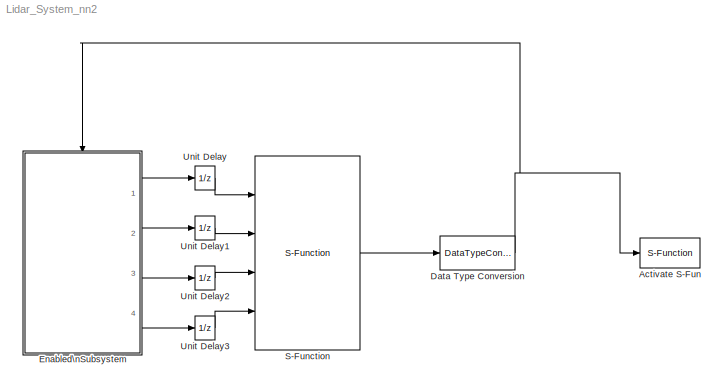
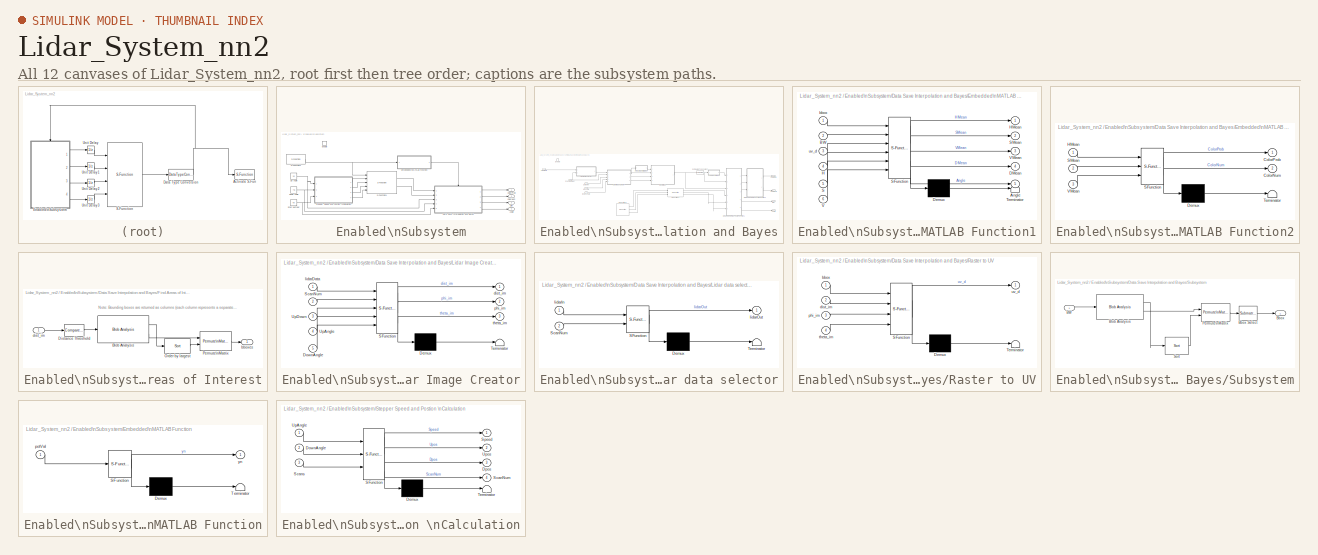
[diagram: thumbnail index - all 12 canvases of the model, root first then tree order]
MODEL Lidar_System_nn2
KIND model
BLOCK [S-Function] Activate S-Fun
  EnableBusSupport = off
  FunctionName = printOut
  Ports = [1]
BLOCK [DataTypeConversion] Data Type Conversion
  OutDataType = fixdt(1, 16)
  OutDataTypeMode = uint32
  OutDataTypeStr = uint32
  OutScaling = 2^0
  RndMeth = Floor
  SaturateOnIntegerOverflow = off
BLOCK [SubSystem] Enabled\nSubsystem
  FunctionWithSeparateData = off
  MaskHideContents = off
  MinAlgLoopOccurrences = off
  Opaque = off
  Ports = [0, 4, 1]
  PropExecContextOutsideSubsystem = off
  RTWSystemCode = Auto
  RequestExecContextInheritance = off
  TreatAsAtomicUnit = on
BLOCK [Outport] Enabled\nSubsystem/Angle
  IconDisplay = Port number
  OutDataType = fixdt(1, 16)
  OutScaling = 2^0
  Port = 4
BLOCK [Outport] Enabled\nSubsystem/ColorNum
  IconDisplay = Port number
  OutDataType = fixdt(1, 16)
  OutScaling = 2^0
  Port = 2
BLOCK [Outport] Enabled\nSubsystem/ColorProb
  IconDisplay = Port number
  OutDataType = fixdt(1, 16)
  OutScaling = 2^0
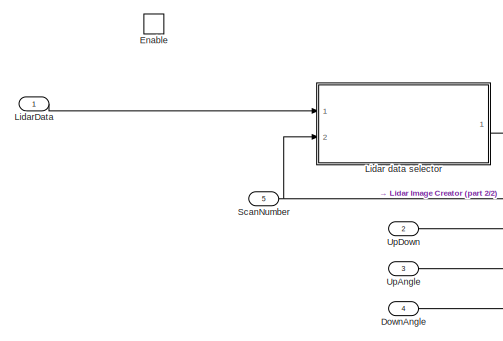
[diagram: Enabled\nSubsystem/Data Save Interpolation and Bayes - part 1/2, middle left region]
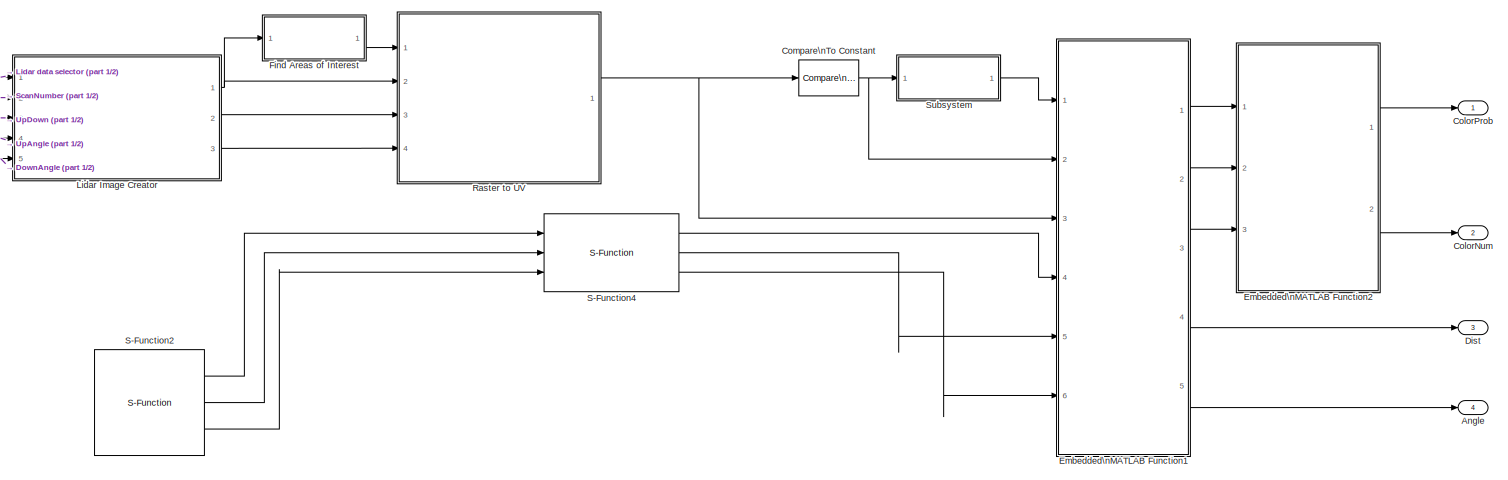
[diagram: Enabled\nSubsystem/Data Save Interpolation and Bayes - part 2/2, center side, full height]
BLOCK [SubSystem] Enabled\nSubsystem/Data Save Interpolation and Bayes
  FunctionWithSeparateData = off
  MaskHideContents = off
  MinAlgLoopOccurrences = off
  Opaque = off
  Ports = [5, 4, 1]
  PropExecContextOutsideSubsystem = off
  RTWSystemCode = Auto
  RequestExecContextInheritance = off
  TreatAsAtomicUnit = on
BLOCK [Outport] Enabled\nSubsystem/Data Save Interpolation and Bayes/Angle
  IconDisplay = Port number
  OutDataType = fixdt(1, 16)
  OutScaling = 2^0
  Port = 4
BLOCK [Outport] Enabled\nSubsystem/Data Save Interpolation and Bayes/ColorNum
  IconDisplay = Port number
  OutDataType = fixdt(1, 16)
  OutScaling = 2^0
  Port = 2
BLOCK [Outport] Enabled\nSubsystem/Data Save Interpolation and Bayes/ColorProb
  IconDisplay = Port number
  OutDataType = fixdt(1, 16)
  OutScaling = 2^0
BLOCK [Reference] Enabled\nSubsystem/Data Save Interpolation and Bayes/Compare\nTo Constant  REF=simulink/Logic and Bit\nOperations/Compare\nTo Constant
  FunctionWithSeparateData = off
  LogicOutDataTypeMode = boolean
  Ports = [1, 1]
  RTWMemSecDataConstants = Inherit from model
  RTWMemSecDataInternal = Inherit from model
  RTWMemSecDataParameters = Inherit from model
  RTWMemSecFuncExecute = Inherit from model
  RTWMemSecFuncInitTerm = Inherit from model
  ShowPortLabels = FromPortIcon
  SourceBlock = simulink/Logic and Bit\nOperations/Compare\nTo Constant
  SourceType = Compare To Constant
  SystemSampleTime = -1
  ZeroCross = off
  const = 100
  relop = <=
BLOCK [Outport] Enabled\nSubsystem/Data Save Interpolation and Bayes/Dist
  IconDisplay = Port number
  OutDataType = fixdt(1, 16)
  OutScaling = 2^0
  Port = 3
BLOCK [Inport] Enabled\nSubsystem/Data Save Interpolation and Bayes/DownAngle
  IconDisplay = Port number
  OutDataType = fixdt(1, 16)
  OutScaling = 2^0
  Port = 4
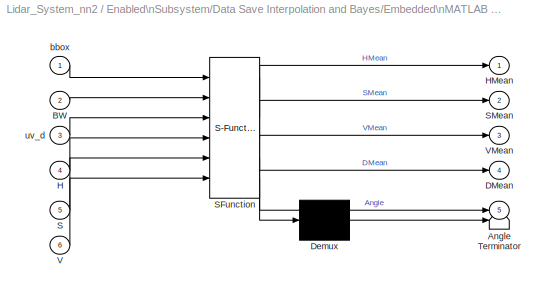
BLOCK [SubSystem] Enabled\nSubsystem/Data Save Interpolation and Bayes/Embedded\nMATLAB Function1
  FunctionWithSeparateData = off
  MaskDescription = Embedded MATLAB block
  MaskDisplay = disp('bbox_hist');
  MaskHideContents = off
  MaskIconFrame = on
  MaskIconOpaque = off
  MaskIconRotate = none
  MaskIconUnits = autoscale
  MaskPortRotate = default
  MaskSelfModifiable = on
  MaskType = Stateflow
  MinAlgLoopOccurrences = off
  Opaque = off
  PermitHierarchicalResolution = ExplicitOnly
  Ports = [6, 5]
  PropExecContextOutsideSubsystem = off
  RTWSystemCode = Auto
  RequestExecContextInheritance = off
BLOCK [Demux] Enabled\nSubsystem/Data Save Interpolation and Bayes/Embedded\nMATLAB Function1/ Demux 
  Outputs = 1
  Ports = [1, 1]
BLOCK [S-Function] Enabled\nSubsystem/Data Save Interpolation and Bayes/Embedded\nMATLAB Function1/ SFunction 
  EnableBusSupport = on
  FunctionName = sf_sfun
  PortCounts = [6 6]
  Ports = [6, 6]
  Tag = Stateflow S-Function Lidar_System_nn2 6
BLOCK [Terminator] Enabled\nSubsystem/Data Save Interpolation and Bayes/Embedded\nMATLAB Function1/ Terminator 
BLOCK [Outport] Enabled\nSubsystem/Data Save Interpolation and Bayes/Embedded\nMATLAB Function1/Angle
  IconDisplay = Port number
  Port = 5
BLOCK [Inport] Enabled\nSubsystem/Data Save Interpolation and Bayes/Embedded\nMATLAB Function1/BW
  IconDisplay = Port number
  Port = 2
BLOCK [Outport] Enabled\nSubsystem/Data Save Interpolation and Bayes/Embedded\nMATLAB Function1/DMean
  IconDisplay = Port number
  Port = 4
BLOCK [Inport] Enabled\nSubsystem/Data Save Interpolation and Bayes/Embedded\nMATLAB Function1/H
  IconDisplay = Port number
  Port = 4
BLOCK [Outport] Enabled\nSubsystem/Data Save Interpolation and Bayes/Embedded\nMATLAB Function1/HMean
  IconDisplay = Port number
  OutDataType = sfix(16)
  OutScaling = 2^0
BLOCK [Inport] Enabled\nSubsystem/Data Save Interpolation and Bayes/Embedded\nMATLAB Function1/S
  IconDisplay = Port number
  Port = 5
BLOCK [Outport] Enabled\nSubsystem/Data Save Interpolation and Bayes/Embedded\nMATLAB Function1/SMean
  IconDisplay = Port number
  Port = 2
BLOCK [Inport] Enabled\nSubsystem/Data Save Interpolation and Bayes/Embedded\nMATLAB Function1/V
  IconDisplay = Port number
  Port = 6
BLOCK [Outport] Enabled\nSubsystem/Data Save Interpolation and Bayes/Embedded\nMATLAB Function1/VMean
  IconDisplay = Port number
  Port = 3
BLOCK [Inport] Enabled\nSubsystem/Data Save Interpolation and Bayes/Embedded\nMATLAB Function1/bbox
  IconDisplay = Port number
  OutDataType = sfix(16)
  OutScaling = 2^0
BLOCK [Inport] Enabled\nSubsystem/Data Save Interpolation and Bayes/Embedded\nMATLAB Function1/uv_d
  IconDisplay = Port number
  Port = 3
BLOCK [SubSystem] Enabled\nSubsystem/Data Save Interpolation and Bayes/Embedded\nMATLAB Function2
  FunctionWithSeparateData = off
  MaskDescription = Embedded MATLAB block
  MaskDisplay = disp('BayesFilter');
  MaskHideContents = off
  MaskIconFrame = on
  MaskIconOpaque = off
  MaskIconRotate = none
  MaskIconUnits = autoscale
  MaskPortRotate = default
  MaskSelfModifiable = on
  MaskType = Stateflow
  MinAlgLoopOccurrences = off
  Opaque = off
  PermitHierarchicalResolution = ExplicitOnly
  Ports = [3, 2]
  PropExecContextOutsideSubsystem = off
  RTWSystemCode = Auto
  RequestExecContextInheritance = off
BLOCK [Demux] Enabled\nSubsystem/Data Save Interpolation and Bayes/Embedded\nMATLAB Function2/ Demux 
  Outputs = 1
  Ports = [1, 1]
BLOCK [S-Function] Enabled\nSubsystem/Data Save Interpolation and Bayes/Embedded\nMATLAB Function2/ SFunction 
  EnableBusSupport = on
  FunctionName = sf_sfun
  PortCounts = [3 3]
  Ports = [3, 3]
  Tag = Stateflow S-Function Lidar_System_nn2 7
BLOCK [Terminator] Enabled\nSubsystem/Data Save Interpolation and Bayes/Embedded\nMATLAB Function2/ Terminator 
BLOCK [Outport] Enabled\nSubsystem/Data Save Interpolation and Bayes/Embedded\nMATLAB Function2/ColorNum
  IconDisplay = Port number
  Port = 2
BLOCK [Outport] Enabled\nSubsystem/Data Save Interpolation and Bayes/Embedded\nMATLAB Function2/ColorProb
  IconDisplay = Port number
  OutDataType = sfix(16)
  OutScaling = 2^0
BLOCK [Inport] Enabled\nSubsystem/Data Save Interpolation and Bayes/Embedded\nMATLAB Function2/HMean
  IconDisplay = Port number
  OutDataType = sfix(16)
  OutScaling = 2^0
BLOCK [Inport] Enabled\nSubsystem/Data Save Interpolation and Bayes/Embedded\nMATLAB Function2/SMean
  IconDisplay = Port number
  Port = 2
BLOCK [Inport] Enabled\nSubsystem/Data Save Interpolation and Bayes/Embedded\nMATLAB Function2/VMean
  IconDisplay = Port number
  Port = 3
BLOCK [EnablePort] Enabled\nSubsystem/Data Save Interpolation and Bayes/Enable
  Ports = []
BLOCK [SubSystem] Enabled\nSubsystem/Data Save Interpolation and Bayes/Find Areas of Interest
  FunctionWithSeparateData = off
  MaskHideContents = off
  MinAlgLoopOccurrences = off
  Opaque = off
  Ports = [1, 1]
  PropExecContextOutsideSubsystem = off
  RTWSystemCode = Auto
  RequestExecContextInheritance = off
BLOCK [Reference] Enabled\nSubsystem/Data Save Interpolation and Bayes/Find Areas of Interest/Blob Analysis  REF=vipstatistics/Blob Analysis
  DialogController = vipDDGCreate
  DialogControllerArgs = DataTag0
  LockScale = off
  Ports = [1, 2]
  SourceBlock = vipstatistics/Blob Analysis
  SourceType = Blob Analysis
  accumFracLength = 0
  accumMode = Binary point scaling
  accumWordLength = 32
  angle = off
  area = on
  bBox = on
  centroid = off
  conn = 8
  eccentricity = off
  equivDiameterSq = off
  excludeBorderBlob = off
  extent = off
  fillValues = -1
  firstCoeffFracLength = 14
  firstCoeffMode = Binary point scaling
  firstCoeffWordLength = 16
  isCount = off
  isFill = on
  isLabel = off
  isOutVarDim = off
  majorAxis = off
  maxArea = intmax('uint32')
  maxBlobs = 8
  memoryFracLength = 16
  memoryMode = Same as product output
  memoryWordLength = 32
  minArea = 30
  minorAxis = off
  outDT = double
  outputFracLength = 16
  outputMode = Binary point scaling
  outputWordLength = 32
  overflowMode = off
  perimeter = off
  prodOutputFracLength = 16
  prodOutputMode = Binary point scaling
  prodOutputWordLength = 32
  roundingMode = Floor
  secondCoeffFracLength = 16
  secondCoeffMode = Binary point scaling
  secondCoeffWordLength = 32
  useMaxArea = off
  useMinArea = on
  warnIfNumBlobsExceeded = on
BLOCK [Reference] Enabled\nSubsystem/Data Save Interpolation and Bayes/Find Areas of Interest/Distance Threshold  REF=simulink/Logic and Bit\nOperations/Compare\nTo Constant
  FunctionWithSeparateData = off
  LogicOutDataTypeMode = boolean
  Ports = [1, 1]
  RTWMemSecDataConstants = Inherit from model
  RTWMemSecDataInternal = Inherit from model
  RTWMemSecDataParameters = Inherit from model
  RTWMemSecFuncExecute = Inherit from model
  RTWMemSecFuncInitTerm = Inherit from model
  ShowPortLabels = FromPortIcon
  SourceBlock = simulink/Logic and Bit\nOperations/Compare\nTo Constant
  SourceType = Compare To Constant
  SystemSampleTime = -1
  ZeroCross = off
  const = 100
  relop = <=
BLOCK [Reference] Enabled\nSubsystem/Data Save Interpolation and Bayes/Find Areas of Interest/Order by largest  REF=dspstat3/Sort
  DialogController = dspDDGCreate
  DialogControllerArgs = DataTag1
  LockScale = off
  Ports = [1, 1]
  SourceBlock = dspstat3/Sort
  SourceType = Sort
  accumFracLength = 30
  accumMode = Same as product output
  accumWordLength = 32
  additionalParams = off
  allowOverrides = on
  dir = Descending
  otype = Index
  overflowMode = off
  prodOutputFracLength = 30
  prodOutputMode = Same as input
  prodOutputWordLength = 32
  roundingMode = Floor
  sortAlg = Quick sort
BLOCK [Reference] Enabled\nSubsystem/Data Save Interpolation and Bayes/Find Areas of Interest/Permute\nMatrix  REF=dspmtrx3/Permute\nMatrix
  Ports = [2, 1]
  SourceBlock = dspmtrx3/Permute\nMatrix
  SourceType = Permute Matrix
  ZeroOneIdxMode = One-based
  checkDims = off
  errmode = Clip index
  mode = Columns
BLOCK [Outport] Enabled\nSubsystem/Data Save Interpolation and Bayes/Find Areas of Interest/bboxes
  IconDisplay = Port number
  OutDataType = fixdt(1, 16)
  OutScaling = 2^0
BLOCK [Inport] Enabled\nSubsystem/Data Save Interpolation and Bayes/Find Areas of Interest/dist_im
  IconDisplay = Port number
  OutDataType = fixdt(1, 16)
  OutScaling = 2^0
BLOCK [SubSystem] Enabled\nSubsystem/Data Save Interpolation and Bayes/Lidar Image Creator
  FunctionWithSeparateData = off
  MaskDescription = Embedded MATLAB block
  MaskDisplay = disp('image_creator');
  MaskHideContents = off
  MaskIconFrame = on
  MaskIconOpaque = off
  MaskIconRotate = none
  MaskIconUnits = autoscale
  MaskPortRotate = default
  MaskSelfModifiable = on
  MaskType = Stateflow
  MinAlgLoopOccurrences = off
  Opaque = off
  PermitHierarchicalResolution = ExplicitOnly
  Ports = [5, 3]
  PropExecContextOutsideSubsystem = off
  RTWSystemCode = Auto
  RequestExecContextInheritance = off
BLOCK [Demux] Enabled\nSubsystem/Data Save Interpolation and Bayes/Lidar Image Creator/ Demux 
  Outputs = 1
  Ports = [1, 1]
BLOCK [S-Function] Enabled\nSubsystem/Data Save Interpolation and Bayes/Lidar Image Creator/ SFunction 
  EnableBusSupport = on
  FunctionName = sf_sfun
  PortCounts = [5 4]
  Ports = [5, 4]
  Tag = Stateflow S-Function Lidar_System_nn2 4
BLOCK [Terminator] Enabled\nSubsystem/Data Save Interpolation and Bayes/Lidar Image Creator/ Terminator 
BLOCK [Inport] Enabled\nSubsystem/Data Save Interpolation and Bayes/Lidar Image Creator/DownAngle
  IconDisplay = Port number
  Port = 5
BLOCK [Inport] Enabled\nSubsystem/Data Save Interpolation and Bayes/Lidar Image Creator/ScanNum
  IconDisplay = Port number
  Port = 2
BLOCK [Inport] Enabled\nSubsystem/Data Save Interpolation and Bayes/Lidar Image Creator/UpAngle
  IconDisplay = Port number
  Port = 4
BLOCK [Inport] Enabled\nSubsystem/Data Save Interpolation and Bayes/Lidar Image Creator/UpDown
  IconDisplay = Port number
  Port = 3
BLOCK [Outport] Enabled\nSubsystem/Data Save Interpolation and Bayes/Lidar Image Creator/dist_im
  IconDisplay = Port number
  OutDataType = sfix(16)
  OutScaling = 2^0
BLOCK [Inport] Enabled\nSubsystem/Data Save Interpolation and Bayes/Lidar Image Creator/lidarData
  IconDisplay = Port number
  OutDataType = sfix(16)
  OutScaling = 2^0
BLOCK [Outport] Enabled\nSubsystem/Data Save Interpolation and Bayes/Lidar Image Creator/phi_im
  IconDisplay = Port number
  Port = 2
BLOCK [Outport] Enabled\nSubsystem/Data Save Interpolation and Bayes/Lidar Image Creator/theta_im
  IconDisplay = Port number
  Port = 3
BLOCK [SubSystem] Enabled\nSubsystem/Data Save Interpolation and Bayes/Lidar data selector
  FunctionWithSeparateData = off
  MaskDescription = Embedded MATLAB block
  MaskDisplay = disp('data_selector');
  MaskHideContents = off
  MaskIconFrame = on
  MaskIconOpaque = off
  MaskIconRotate = none
  MaskIconUnits = autoscale
  MaskPortRotate = default
  MaskSelfModifiable = on
  MaskType = Stateflow
  MinAlgLoopOccurrences = off
  Opaque = off
  PermitHierarchicalResolution = ExplicitOnly
  Ports = [2, 1]
  PropExecContextOutsideSubsystem = off
  RTWSystemCode = Auto
  RequestExecContextInheritance = off
BLOCK [Demux] Enabled\nSubsystem/Data Save Interpolation and Bayes/Lidar data selector/ Demux 
  Outputs = 1
  Ports = [1, 1]
BLOCK [S-Function] Enabled\nSubsystem/Data Save Interpolation and Bayes/Lidar data selector/ SFunction 
  EnableBusSupport = on
  FunctionName = sf_sfun
  PortCounts = [2 2]
  Ports = [2, 2]
  Tag = Stateflow S-Function Lidar_System_nn2 3
BLOCK [Terminator] Enabled\nSubsystem/Data Save Interpolation and Bayes/Lidar data selector/ Terminator 
BLOCK [Inport] Enabled\nSubsystem/Data Save Interpolation and Bayes/Lidar data selector/ScanNum
  IconDisplay = Port number
  Port = 2
BLOCK [Inport] Enabled\nSubsystem/Data Save Interpolation and Bayes/Lidar data selector/lidarIn
  IconDisplay = Port number
  OutDataType = sfix(16)
  OutScaling = 2^0
BLOCK [Outport] Enabled\nSubsystem/Data Save Interpolation and Bayes/Lidar data selector/lidarOut
  IconDisplay = Port number
  OutDataType = sfix(16)
  OutScaling = 2^0
BLOCK [Inport] Enabled\nSubsystem/Data Save Interpolation and Bayes/LidarData
  IconDisplay = Port number
  OutDataType = fixdt(1, 16)
  OutScaling = 2^0
BLOCK [SubSystem] Enabled\nSubsystem/Data Save Interpolation and Bayes/Raster to UV
  FunctionWithSeparateData = off
  MaskDescription = Embedded MATLAB block
  MaskDisplay = disp('fcn');
  MaskHideContents = off
  MaskIconFrame = on
  MaskIconOpaque = off
  MaskIconRotate = none
  MaskIconUnits = autoscale
  MaskPortRotate = default
  MaskSelfModifiable = on
  MaskType = Stateflow
  MinAlgLoopOccurrences = off
  Opaque = off
  PermitHierarchicalResolution = ExplicitOnly
  Ports = [4, 1]
  PropExecContextOutsideSubsystem = off
  RTWSystemCode = Auto
  RequestExecContextInheritance = off
BLOCK [Demux] Enabled\nSubsystem/Data Save Interpolation and Bayes/Raster to UV/ Demux 
  Outputs = 1
  Ports = [1, 1]
BLOCK [S-Function] Enabled\nSubsystem/Data Save Interpolation and Bayes/Raster to UV/ SFunction 
  EnableBusSupport = on
  FunctionName = sf_sfun
  PortCounts = [4 2]
  Ports = [4, 2]
  Tag = Stateflow S-Function Lidar_System_nn2 5
BLOCK [Terminator] Enabled\nSubsystem/Data Save Interpolation and Bayes/Raster to UV/ Terminator 
BLOCK [Inport] Enabled\nSubsystem/Data Save Interpolation and Bayes/Raster to UV/bbox
  IconDisplay = Port number
  OutDataType = sfix(16)
  OutScaling = 2^0
BLOCK [Inport] Enabled\nSubsystem/Data Save Interpolation and Bayes/Raster to UV/dist_im
  IconDisplay = Port number
  Port = 2
BLOCK [Inport] Enabled\nSubsystem/Data Save Interpolation and Bayes/Raster to UV/phi_im
  IconDisplay = Port number
  Port = 3
BLOCK [Inport] Enabled\nSubsystem/Data Save Interpolation and Bayes/Raster to UV/theta_im
  IconDisplay = Port number
  Port = 4
BLOCK [Outport] Enabled\nSubsystem/Data Save Interpolation and Bayes/Raster to UV/uv_d
  IconDisplay = Port number
  OutDataType = sfix(16)
  OutScaling = 2^0
BLOCK [S-Function] Enabled\nSubsystem/Data Save Interpolation and Bayes/S-Function2
  EnableBusSupport = off
  FunctionName = WebcamTest_v2
  Ports = [0, 3]
BLOCK [S-Function] Enabled\nSubsystem/Data Save Interpolation and Bayes/S-Function4
  EnableBusSupport = off
  FunctionName = rgbtohsv_sfun
  Ports = [3, 3]
BLOCK [Inport] Enabled\nSubsystem/Data Save Interpolation and Bayes/ScanNumber
  IconDisplay = Port number
  OutDataType = fixdt(1, 16)
  OutScaling = 2^0
  Port = 5
BLOCK [SubSystem] Enabled\nSubsystem/Data Save Interpolation and Bayes/Subsystem
  FunctionWithSeparateData = off
  MaskHideContents = off
  MinAlgLoopOccurrences = off
  Opaque = off
  Ports = [1, 1]
  PropExecContextOutsideSubsystem = off
  RTWSystemCode = Auto
  RequestExecContextInheritance = off
BLOCK [Inport] Enabled\nSubsystem/Data Save Interpolation and Bayes/Subsystem/BW
  IconDisplay = Port number
  OutDataType = fixdt(1, 16)
  OutScaling = 2^0
BLOCK [Outport] Enabled\nSubsystem/Data Save Interpolation and Bayes/Subsystem/Bbox
  IconDisplay = Port number
  OutDataType = fixdt(1, 16)
  OutScaling = 2^0
BLOCK [Reference] Enabled\nSubsystem/Data Save Interpolation and Bayes/Subsystem/Bbox Select  REF=dspmtrx3/Submatrix
  ColEndIndex = 1
  ColEndMode = Last
  ColSpan = One column
  ColStartIndex = 1
  ColStartMode = First
  Ports = [1, 1]
  RowEndIndex = 1
  RowEndMode = Last
  RowSpan = All rows
  RowStartIndex = 1
  RowStartMode = First
  SourceBlock = dspmtrx3/Submatrix
  SourceType = Submatrix
BLOCK [Reference] Enabled\nSubsystem/Data Save Interpolation and Bayes/Subsystem/Blob Analysis  REF=vipstatistics/Blob Analysis
  DialogController = vipDDGCreate
  DialogControllerArgs = DataTag2
  LockScale = off
  Ports = [1, 2]
  SourceBlock = vipstatistics/Blob Analysis
  SourceType = Blob Analysis
  accumFracLength = 0
  accumMode = Binary point scaling
  accumWordLength = 32
  angle = off
  area = on
  bBox = on
  centroid = off
  conn = 8
  eccentricity = off
  equivDiameterSq = off
  excludeBorderBlob = off
  extent = off
  fillValues = -1
  firstCoeffFracLength = 14
  firstCoeffMode = Binary point scaling
  firstCoeffWordLength = 16
  isCount = off
  isFill = on
  isLabel = off
  isOutVarDim = off
  majorAxis = off
  maxArea = intmax('uint32')
  maxBlobs = 20
  memoryFracLength = 16
  memoryMode = Same as product output
  memoryWordLength = 32
  minArea = 20
  minorAxis = off
  outDT = double
  outputFracLength = 16
  outputMode = Binary point scaling
  outputWordLength = 32
  overflowMode = off
  perimeter = off
  prodOutputFracLength = 16
  prodOutputMode = Binary point scaling
  prodOutputWordLength = 32
  roundingMode = Floor
  secondCoeffFracLength = 16
  secondCoeffMode = Binary point scaling
  secondCoeffWordLength = 32
  useMaxArea = off
  useMinArea = on
  warnIfNumBlobsExceeded = on
BLOCK [Reference] Enabled\nSubsystem/Data Save Interpolation and Bayes/Subsystem/Permute\nMatrix  REF=dspmtrx3/Permute\nMatrix
  Ports = [2, 1]
  SourceBlock = dspmtrx3/Permute\nMatrix
  SourceType = Permute Matrix
  ZeroOneIdxMode = One-based
  checkDims = off
  errmode = Clip index
  mode = Columns
BLOCK [Reference] Enabled\nSubsystem/Data Save Interpolation and Bayes/Subsystem/Sort  REF=dspstat3/Sort
  DialogController = dspDDGCreate
  DialogControllerArgs = DataTag3
  LockScale = off
  Ports = [1, 1]
  SourceBlock = dspstat3/Sort
  SourceType = Sort
  accumFracLength = 30
  accumMode = Same as product output
  accumWordLength = 32
  additionalParams = off
  allowOverrides = on
  dir = Descending
  otype = Index
  overflowMode = off
  prodOutputFracLength = 30
  prodOutputMode = Same as input
  prodOutputWordLength = 32
  roundingMode = Floor
  sortAlg = Quick sort
BLOCK [Inport] Enabled\nSubsystem/Data Save Interpolation and Bayes/UpAngle
  IconDisplay = Port number
  OutDataType = fixdt(1, 16)
  OutScaling = 2^0
  Port = 3
BLOCK [Inport] Enabled\nSubsystem/Data Save Interpolation and Bayes/UpDown
  IconDisplay = Port number
  OutDataType = fixdt(1, 16)
  OutScaling = 2^0
  Port = 2
BLOCK [Outport] Enabled\nSubsystem/Dist
  IconDisplay = Port number
  OutDataType = fixdt(1, 16)
  OutScaling = 2^0
  Port = 3
BLOCK [Constant] Enabled\nSubsystem/Down Angle
  OutDataType = fixdt(1, 16)
  OutScaling = 2^0
  Value = -45
BLOCK [SubSystem] Enabled\nSubsystem/Embedded\nMATLAB Function
  FunctionWithSeparateData = off
  MaskDescription = Embedded MATLAB block
  MaskDisplay = disp('check_pot_val');
  MaskHideContents = off
  MaskIconFrame = on
  MaskIconOpaque = off
  MaskIconRotate = none
  MaskIconUnits = autoscale
  MaskPortRotate = default
  MaskSelfModifiable = on
  MaskType = Stateflow
  MinAlgLoopOccurrences = off
  Opaque = off
  PermitHierarchicalResolution = ExplicitOnly
  Ports = [1, 1]
  PropExecContextOutsideSubsystem = off
  RTWSystemCode = Auto
  RequestExecContextInheritance = off
BLOCK [Demux] Enabled\nSubsystem/Embedded\nMATLAB Function/ Demux 
  Outputs = 1
  Ports = [1, 1]
BLOCK [S-Function] Enabled\nSubsystem/Embedded\nMATLAB Function/ SFunction 
  EnableBusSupport = on
  FunctionName = sf_sfun
  PortCounts = [1 2]
  Ports = [1, 2]
  Tag = Stateflow S-Function Lidar_System_nn2 2
BLOCK [Terminator] Enabled\nSubsystem/Embedded\nMATLAB Function/ Terminator 
BLOCK [Inport] Enabled\nSubsystem/Embedded\nMATLAB Function/potVal
  IconDisplay = Port number
  OutDataType = sfix(16)
  OutScaling = 2^0
BLOCK [Outport] Enabled\nSubsystem/Embedded\nMATLAB Function/yn
  IconDisplay = Port number
  OutDataType = sfix(16)
  OutScaling = 2^0
BLOCK [EnablePort] Enabled\nSubsystem/Enable
  Ports = []
BLOCK [S-Function] Enabled\nSubsystem/S-Function1
  EnableBusSupport = off
  FunctionName = TT_lidar_zero_test_v1
  Ports = [5, 2]
BLOCK [S-Function] Enabled\nSubsystem/S-Function4
  EnableBusSupport = off
  FunctionName = TT_pot_readerV1
  Ports = [0, 1]
BLOCK [Constant] Enabled\nSubsystem/Scan Number
  OutDataType = fixdt(1, 16)
  OutScaling = 2^0
  Value = 65
BLOCK [SubSystem] Enabled\nSubsystem/Stepper Speed and Postion \nCalculation
  FunctionWithSeparateData = off
  MaskDescription = Embedded MATLAB block
  MaskDisplay = disp('stepper_calc');
  MaskHideContents = off
  MaskIconFrame = on
  MaskIconOpaque = off
  MaskIconRotate = none
  MaskIconUnits = autoscale
  MaskPortRotate = default
  MaskSelfModifiable = on
  MaskType = Stateflow
  MinAlgLoopOccurrences = off
  Opaque = off
  PermitHierarchicalResolution = ExplicitOnly
  Ports = [3, 4]
  PropExecContextOutsideSubsystem = off
  RTWSystemCode = Auto
  RequestExecContextInheritance = off
BLOCK [Demux] Enabled\nSubsystem/Stepper Speed and Postion \nCalculation/ Demux 
  Outputs = 1
  Ports = [1, 1]
BLOCK [S-Function] Enabled\nSubsystem/Stepper Speed and Postion \nCalculation/ SFunction 
  EnableBusSupport = on
  FunctionName = sf_sfun
  PortCounts = [3 5]
  Ports = [3, 5]
  Tag = Stateflow S-Function Lidar_System_nn2 1
BLOCK [Terminator] Enabled\nSubsystem/Stepper Speed and Postion \nCalculation/ Terminator 
BLOCK [Inport] Enabled\nSubsystem/Stepper Speed and Postion \nCalculation/DownAngle
  IconDisplay = Port number
  Port = 2
BLOCK [Outport] Enabled\nSubsystem/Stepper Speed and Postion \nCalculation/Dpos
  IconDisplay = Port number
  Port = 3
BLOCK [Outport] Enabled\nSubsystem/Stepper Speed and Postion \nCalculation/ScanNum
  IconDisplay = Port number
  Port = 4
BLOCK [Inport] Enabled\nSubsystem/Stepper Speed and Postion \nCalculation/Scans
  IconDisplay = Port number
  Port = 3
BLOCK [Outport] Enabled\nSubsystem/Stepper Speed and Postion \nCalculation/Speed
  IconDisplay = Port number
  OutDataType = sfix(16)
  OutScaling = 2^0
BLOCK [Inport] Enabled\nSubsystem/Stepper Speed and Postion \nCalculation/UpAngle
  IconDisplay = Port number
  OutDataType = sfix(16)
  OutScaling = 2^0
BLOCK [Outport] Enabled\nSubsystem/Stepper Speed and Postion \nCalculation/Upos
  IconDisplay = Port number
  Port = 2
BLOCK [Constant] Enabled\nSubsystem/Up Angle
  OutDataType = fixdt(1, 16)
  OutScaling = 2^0
  Value = 30
BLOCK [S-Function] S-Function
  EnableBusSupport = off
  FunctionName = serialComV3
  Ports = [4, 1]
BLOCK [UnitDelay] Unit Delay
  SampleTime = -1
BLOCK [UnitDelay] Unit Delay1
  SampleTime = -1
  X0 = int32(0)
BLOCK [UnitDelay] Unit Delay2
  SampleTime = -1
  X0 = int32(0)
BLOCK [UnitDelay] Unit Delay3
  SampleTime = -1
  X0 = int32(0)
ANNOTATION Enabled\nSubsystem/Data Save Interpolation and Bayes/Find Areas of Interest: Note: Bounding boxes are returned as columns (each column represents a separate blob)
NET Data Type Conversion:1 -> Activate S-Fun:1, Enabled\nSubsystem:enable
NET Enabled\nSubsystem/Data Save Interpolation and Bayes/Compare\nTo Constant:1 -> Enabled\nSubsystem/Data Save Interpolation and Bayes/Embedded\nMATLAB Function1:2, Enabled\nSubsystem/Data Save Interpolation and Bayes/Subsystem:1
LINE Enabled\nSubsystem/Data Save Interpolation and Bayes/DownAngle:1 -> Enabled\nSubsystem/Data Save Interpolation and Bayes/Lidar Image Creator:5
LINE Enabled\nSubsystem/Data Save Interpolation and Bayes/Embedded\nMATLAB Function1/ Demux :1 -> Enabled\nSubsystem/Data Save Interpolation and Bayes/Embedded\nMATLAB Function1/ Terminator :1
LINE Enabled\nSubsystem/Data Save Interpolation and Bayes/Embedded\nMATLAB Function1/ SFunction :1 -> Enabled\nSubsystem/Data Save Interpolation and Bayes/Embedded\nMATLAB Function1/ Demux :1
LINE Enabled\nSubsystem/Data Save Interpolation and Bayes/Embedded\nMATLAB Function1/ SFunction :2 -> Enabled\nSubsystem/Data Save Interpolation and Bayes/Embedded\nMATLAB Function1/HMean:1
LINE Enabled\nSubsystem/Data Save Interpolation and Bayes/Embedded\nMATLAB Function1/ SFunction :3 -> Enabled\nSubsystem/Data Save Interpolation and Bayes/Embedded\nMATLAB Function1/SMean:1
LINE Enabled\nSubsystem/Data Save Interpolation and Bayes/Embedded\nMATLAB Function1/ SFunction :4 -> Enabled\nSubsystem/Data Save Interpolation and Bayes/Embedded\nMATLAB Function1/VMean:1
LINE Enabled\nSubsystem/Data Save Interpolation and Bayes/Embedded\nMATLAB Function1/ SFunction :5 -> Enabled\nSubsystem/Data Save Interpolation and Bayes/Embedded\nMATLAB Function1/DMean:1
LINE Enabled\nSubsystem/Data Save Interpolation and Bayes/Embedded\nMATLAB Function1/ SFunction :6 -> Enabled\nSubsystem/Data Save Interpolation and Bayes/Embedded\nMATLAB Function1/Angle:1
LINE Enabled\nSubsystem/Data Save Interpolation and Bayes/Embedded\nMATLAB Function1/BW:1 -> Enabled\nSubsystem/Data Save Interpolation and Bayes/Embedded\nMATLAB Function1/ SFunction :2
LINE Enabled\nSubsystem/Data Save Interpolation and Bayes/Embedded\nMATLAB Function1/H:1 -> Enabled\nSubsystem/Data Save Interpolation and Bayes/Embedded\nMATLAB Function1/ SFunction :4
LINE Enabled\nSubsystem/Data Save Interpolation and Bayes/Embedded\nMATLAB Function1/S:1 -> Enabled\nSubsystem/Data Save Interpolation and Bayes/Embedded\nMATLAB Function1/ SFunction :5
LINE Enabled\nSubsystem/Data Save Interpolation and Bayes/Embedded\nMATLAB Function1/V:1 -> Enabled\nSubsystem/Data Save Interpolation and Bayes/Embedded\nMATLAB Function1/ SFunction :6
LINE Enabled\nSubsystem/Data Save Interpolation and Bayes/Embedded\nMATLAB Function1/bbox:1 -> Enabled\nSubsystem/Data Save Interpolation and Bayes/Embedded\nMATLAB Function1/ SFunction :1
LINE Enabled\nSubsystem/Data Save Interpolation and Bayes/Embedded\nMATLAB Function1/uv_d:1 -> Enabled\nSubsystem/Data Save Interpolation and Bayes/Embedded\nMATLAB Function1/ SFunction :3
LINE Enabled\nSubsystem/Data Save Interpolation and Bayes/Embedded\nMATLAB Function1:1 -> Enabled\nSubsystem/Data Save Interpolation and Bayes/Embedded\nMATLAB Function2:1
LINE Enabled\nSubsystem/Data Save Interpolation and Bayes/Embedded\nMATLAB Function1:2 -> Enabled\nSubsystem/Data Save Interpolation and Bayes/Embedded\nMATLAB Function2:2
LINE Enabled\nSubsystem/Data Save Interpolation and Bayes/Embedded\nMATLAB Function1:3 -> Enabled\nSubsystem/Data Save Interpolation and Bayes/Embedded\nMATLAB Function2:3
LINE Enabled\nSubsystem/Data Save Interpolation and Bayes/Embedded\nMATLAB Function1:4 -> Enabled\nSubsystem/Data Save Interpolation and Bayes/Dist:1
LINE Enabled\nSubsystem/Data Save Interpolation and Bayes/Embedded\nMATLAB Function1:5 -> Enabled\nSubsystem/Data Save Interpolation and Bayes/Angle:1
LINE Enabled\nSubsystem/Data Save Interpolation and Bayes/Embedded\nMATLAB Function2/ Demux :1 -> Enabled\nSubsystem/Data Save Interpolation and Bayes/Embedded\nMATLAB Function2/ Terminator :1
LINE Enabled\nSubsystem/Data Save Interpolation and Bayes/Embedded\nMATLAB Function2/ SFunction :1 -> Enabled\nSubsystem/Data Save Interpolation and Bayes/Embedded\nMATLAB Function2/ Demux :1
LINE Enabled\nSubsystem/Data Save Interpolation and Bayes/Embedded\nMATLAB Function2/ SFunction :2 -> Enabled\nSubsystem/Data Save Interpolation and Bayes/Embedded\nMATLAB Function2/ColorProb:1
LINE Enabled\nSubsystem/Data Save Interpolation and Bayes/Embedded\nMATLAB Function2/ SFunction :3 -> Enabled\nSubsystem/Data Save Interpolation and Bayes/Embedded\nMATLAB Function2/ColorNum:1
LINE Enabled\nSubsystem/Data Save Interpolation and Bayes/Embedded\nMATLAB Function2/HMean:1 -> Enabled\nSubsystem/Data Save Interpolation and Bayes/Embedded\nMATLAB Function2/ SFunction :1
LINE Enabled\nSubsystem/Data Save Interpolation and Bayes/Embedded\nMATLAB Function2/SMean:1 -> Enabled\nSubsystem/Data Save Interpolation and Bayes/Embedded\nMATLAB Function2/ SFunction :2
LINE Enabled\nSubsystem/Data Save Interpolation and Bayes/Embedded\nMATLAB Function2/VMean:1 -> Enabled\nSubsystem/Data Save Interpolation and Bayes/Embedded\nMATLAB Function2/ SFunction :3
LINE Enabled\nSubsystem/Data Save Interpolation and Bayes/Embedded\nMATLAB Function2:1 -> Enabled\nSubsystem/Data Save Interpolation and Bayes/ColorProb:1
LINE Enabled\nSubsystem/Data Save Interpolation and Bayes/Embedded\nMATLAB Function2:2 -> Enabled\nSubsystem/Data Save Interpolation and Bayes/ColorNum:1
LINE Enabled\nSubsystem/Data Save Interpolation and Bayes/Find Areas of Interest/Blob Analysis:1 -> Enabled\nSubsystem/Data Save Interpolation and Bayes/Find Areas of Interest/Order by largest:1
LINE Enabled\nSubsystem/Data Save Interpolation and Bayes/Find Areas of Interest/Blob Analysis:2 -> Enabled\nSubsystem/Data Save Interpolation and Bayes/Find Areas of Interest/Permute\nMatrix:1
LINE Enabled\nSubsystem/Data Save Interpolation and Bayes/Find Areas of Interest/Distance Threshold:1 -> Enabled\nSubsystem/Data Save Interpolation and Bayes/Find Areas of Interest/Blob Analysis:1
LINE Enabled\nSubsystem/Data Save Interpolation and Bayes/Find Areas of Interest/Order by largest:1 -> Enabled\nSubsystem/Data Save Interpolation and Bayes/Find Areas of Interest/Permute\nMatrix:2
LINE Enabled\nSubsystem/Data Save Interpolation and Bayes/Find Areas of Interest/Permute\nMatrix:1 -> Enabled\nSubsystem/Data Save Interpolation and Bayes/Find Areas of Interest/bboxes:1
LINE Enabled\nSubsystem/Data Save Interpolation and Bayes/Find Areas of Interest/dist_im:1 -> Enabled\nSubsystem/Data Save Interpolation and Bayes/Find Areas of Interest/Distance Threshold:1
LINE Enabled\nSubsystem/Data Save Interpolation and Bayes/Find Areas of Interest:1 -> Enabled\nSubsystem/Data Save Interpolation and Bayes/Raster to UV:1
LINE Enabled\nSubsystem/Data Save Interpolation and Bayes/Lidar Image Creator/ Demux :1 -> Enabled\nSubsystem/Data Save Interpolation and Bayes/Lidar Image Creator/ Terminator :1
LINE Enabled\nSubsystem/Data Save Interpolation and Bayes/Lidar Image Creator/ SFunction :1 -> Enabled\nSubsystem/Data Save Interpolation and Bayes/Lidar Image Creator/ Demux :1
LINE Enabled\nSubsystem/Data Save Interpolation and Bayes/Lidar Image Creator/ SFunction :2 -> Enabled\nSubsystem/Data Save Interpolation and Bayes/Lidar Image Creator/dist_im:1
LINE Enabled\nSubsystem/Data Save Interpolation and Bayes/Lidar Image Creator/ SFunction :3 -> Enabled\nSubsystem/Data Save Interpolation and Bayes/Lidar Image Creator/phi_im:1
LINE Enabled\nSubsystem/Data Save Interpolation and Bayes/Lidar Image Creator/ SFunction :4 -> Enabled\nSubsystem/Data Save Interpolation and Bayes/Lidar Image Creator/theta_im:1
LINE Enabled\nSubsystem/Data Save Interpolation and Bayes/Lidar Image Creator/DownAngle:1 -> Enabled\nSubsystem/Data Save Interpolation and Bayes/Lidar Image Creator/ SFunction :5
LINE Enabled\nSubsystem/Data Save Interpolation and Bayes/Lidar Image Creator/ScanNum:1 -> Enabled\nSubsystem/Data Save Interpolation and Bayes/Lidar Image Creator/ SFunction :2
LINE Enabled\nSubsystem/Data Save Interpolation and Bayes/Lidar Image Creator/UpAngle:1 -> Enabled\nSubsystem/Data Save Interpolation and Bayes/Lidar Image Creator/ SFunction :4
LINE Enabled\nSubsystem/Data Save Interpolation and Bayes/Lidar Image Creator/UpDown:1 -> Enabled\nSubsystem/Data Save Interpolation and Bayes/Lidar Image Creator/ SFunction :3
LINE Enabled\nSubsystem/Data Save Interpolation and Bayes/Lidar Image Creator/lidarData:1 -> Enabled\nSubsystem/Data Save Interpolation and Bayes/Lidar Image Creator/ SFunction :1
NET Enabled\nSubsystem/Data Save Interpolation and Bayes/Lidar Image Creator:1 -> Enabled\nSubsystem/Data Save Interpolation and Bayes/Find Areas of Interest:1, Enabled\nSubsystem/Data Save Interpolation and Bayes/Raster to UV:2
LINE Enabled\nSubsystem/Data Save Interpolation and Bayes/Lidar Image Creator:2 -> Enabled\nSubsystem/Data Save Interpolation and Bayes/Raster to UV:3
LINE Enabled\nSubsystem/Data Save Interpolation and Bayes/Lidar Image Creator:3 -> Enabled\nSubsystem/Data Save Interpolation and Bayes/Raster to UV:4
LINE Enabled\nSubsystem/Data Save Interpolation and Bayes/Lidar data selector/ Demux :1 -> Enabled\nSubsystem/Data Save Interpolation and Bayes/Lidar data selector/ Terminator :1
LINE Enabled\nSubsystem/Data Save Interpolation and Bayes/Lidar data selector/ SFunction :1 -> Enabled\nSubsystem/Data Save Interpolation and Bayes/Lidar data selector/ Demux :1
LINE Enabled\nSubsystem/Data Save Interpolation and Bayes/Lidar data selector/ SFunction :2 -> Enabled\nSubsystem/Data Save Interpolation and Bayes/Lidar data selector/lidarOut:1
LINE Enabled\nSubsystem/Data Save Interpolation and Bayes/Lidar data selector/ScanNum:1 -> Enabled\nSubsystem/Data Save Interpolation and Bayes/Lidar data selector/ SFunction :2
LINE Enabled\nSubsystem/Data Save Interpolation and Bayes/Lidar data selector/lidarIn:1 -> Enabled\nSubsystem/Data Save Interpolation and Bayes/Lidar data selector/ SFunction :1
LINE Enabled\nSubsystem/Data Save Interpolation and Bayes/Lidar data selector:1 -> Enabled\nSubsystem/Data Save Interpolation and Bayes/Lidar Image Creator:1
LINE Enabled\nSubsystem/Data Save Interpolation and Bayes/LidarData:1 -> Enabled\nSubsystem/Data Save Interpolation and Bayes/Lidar data selector:1
LINE Enabled\nSubsystem/Data Save Interpolation and Bayes/Raster to UV/ Demux :1 -> Enabled\nSubsystem/Data Save Interpolation and Bayes/Raster to UV/ Terminator :1
LINE Enabled\nSubsystem/Data Save Interpolation and Bayes/Raster to UV/ SFunction :1 -> Enabled\nSubsystem/Data Save Interpolation and Bayes/Raster to UV/ Demux :1
LINE Enabled\nSubsystem/Data Save Interpolation and Bayes/Raster to UV/ SFunction :2 -> Enabled\nSubsystem/Data Save Interpolation and Bayes/Raster to UV/uv_d:1
LINE Enabled\nSubsystem/Data Save Interpolation and Bayes/Raster to UV/bbox:1 -> Enabled\nSubsystem/Data Save Interpolation and Bayes/Raster to UV/ SFunction :1
LINE Enabled\nSubsystem/Data Save Interpolation and Bayes/Raster to UV/dist_im:1 -> Enabled\nSubsystem/Data Save Interpolation and Bayes/Raster to UV/ SFunction :2
LINE Enabled\nSubsystem/Data Save Interpolation and Bayes/Raster to UV/phi_im:1 -> Enabled\nSubsystem/Data Save Interpolation and Bayes/Raster to UV/ SFunction :3
LINE Enabled\nSubsystem/Data Save Interpolation and Bayes/Raster to UV/theta_im:1 -> Enabled\nSubsystem/Data Save Interpolation and Bayes/Raster to UV/ SFunction :4
NET Enabled\nSubsystem/Data Save Interpolation and Bayes/Raster to UV:1 -> Enabled\nSubsystem/Data Save Interpolation and Bayes/Compare\nTo Constant:1, Enabled\nSubsystem/Data Save Interpolation and Bayes/Embedded\nMATLAB Function1:3
LINE Enabled\nSubsystem/Data Save Interpolation and Bayes/S-Function2:1 -> Enabled\nSubsystem/Data Save Interpolation and Bayes/S-Function4:1
LINE Enabled\nSubsystem/Data Save Interpolation and Bayes/S-Function2:2 -> Enabled\nSubsystem/Data Save Interpolation and Bayes/S-Function4:2
LINE Enabled\nSubsystem/Data Save Interpolation and Bayes/S-Function2:3 -> Enabled\nSubsystem/Data Save Interpolation and Bayes/S-Function4:3
LINE Enabled\nSubsystem/Data Save Interpolation and Bayes/S-Function4:1 -> Enabled\nSubsystem/Data Save Interpolation and Bayes/Embedded\nMATLAB Function1:4
LINE Enabled\nSubsystem/Data Save Interpolation and Bayes/S-Function4:2 -> Enabled\nSubsystem/Data Save Interpolation and Bayes/Embedded\nMATLAB Function1:5
LINE Enabled\nSubsystem/Data Save Interpolation and Bayes/S-Function4:3 -> Enabled\nSubsystem/Data Save Interpolation and Bayes/Embedded\nMATLAB Function1:6
NET Enabled\nSubsystem/Data Save Interpolation and Bayes/ScanNumber:1 -> Enabled\nSubsystem/Data Save Interpolation and Bayes/Lidar Image Creator:2, Enabled\nSubsystem/Data Save Interpolation and Bayes/Lidar data selector:2
LINE Enabled\nSubsystem/Data Save Interpolation and Bayes/Subsystem/BW:1 -> Enabled\nSubsystem/Data Save Interpolation and Bayes/Subsystem/Blob Analysis:1
LINE Enabled\nSubsystem/Data Save Interpolation and Bayes/Subsystem/Bbox Select:1 -> Enabled\nSubsystem/Data Save Interpolation and Bayes/Subsystem/Bbox:1
LINE Enabled\nSubsystem/Data Save Interpolation and Bayes/Subsystem/Blob Analysis:1 -> Enabled\nSubsystem/Data Save Interpolation and Bayes/Subsystem/Sort:1
LINE Enabled\nSubsystem/Data Save Interpolation and Bayes/Subsystem/Blob Analysis:2 -> Enabled\nSubsystem/Data Save Interpolation and Bayes/Subsystem/Permute\nMatrix:1
LINE Enabled\nSubsystem/Data Save Interpolation and Bayes/Subsystem/Permute\nMatrix:1 -> Enabled\nSubsystem/Data Save Interpolation and Bayes/Subsystem/Bbox Select:1
LINE Enabled\nSubsystem/Data Save Interpolation and Bayes/Subsystem/Sort:1 -> Enabled\nSubsystem/Data Save Interpolation and Bayes/Subsystem/Permute\nMatrix:2
LINE Enabled\nSubsystem/Data Save Interpolation and Bayes/Subsystem:1 -> Enabled\nSubsystem/Data Save Interpolation and Bayes/Embedded\nMATLAB Function1:1
LINE Enabled\nSubsystem/Data Save Interpolation and Bayes/UpAngle:1 -> Enabled\nSubsystem/Data Save Interpolation and Bayes/Lidar Image Creator:4
LINE Enabled\nSubsystem/Data Save Interpolation and Bayes/UpDown:1 -> Enabled\nSubsystem/Data Save Interpolation and Bayes/Lidar Image Creator:3
LINE Enabled\nSubsystem/Data Save Interpolation and Bayes:1 -> Enabled\nSubsystem/ColorProb:1
LINE Enabled\nSubsystem/Data Save Interpolation and Bayes:2 -> Enabled\nSubsystem/ColorNum:1
LINE Enabled\nSubsystem/Data Save Interpolation and Bayes:3 -> Enabled\nSubsystem/Dist:1
LINE Enabled\nSubsystem/Data Save Interpolation and Bayes:4 -> Enabled\nSubsystem/Angle:1
NET Enabled\nSubsystem/Down Angle:1 -> Enabled\nSubsystem/Data Save Interpolation and Bayes:4, Enabled\nSubsystem/Stepper Speed and Postion \nCalculation:2
LINE Enabled\nSubsystem/Embedded\nMATLAB Function/ Demux :1 -> Enabled\nSubsystem/Embedded\nMATLAB Function/ Terminator :1
LINE Enabled\nSubsystem/Embedded\nMATLAB Function/ SFunction :1 -> Enabled\nSubsystem/Embedded\nMATLAB Function/ Demux :1
LINE Enabled\nSubsystem/Embedded\nMATLAB Function/ SFunction :2 -> Enabled\nSubsystem/Embedded\nMATLAB Function/yn:1
LINE Enabled\nSubsystem/Embedded\nMATLAB Function/potVal:1 -> Enabled\nSubsystem/Embedded\nMATLAB Function/ SFunction :1
LINE Enabled\nSubsystem/Embedded\nMATLAB Function:1 -> Enabled\nSubsystem/Data Save Interpolation and Bayes:enable
LINE Enabled\nSubsystem/S-Function1:1 -> Enabled\nSubsystem/Data Save Interpolation and Bayes:1
LINE Enabled\nSubsystem/S-Function1:2 -> Enabled\nSubsystem/Data Save Interpolation and Bayes:2
NET Enabled\nSubsystem/S-Function4:1 -> Enabled\nSubsystem/Embedded\nMATLAB Function:1, Enabled\nSubsystem/S-Function1:1
NET Enabled\nSubsystem/Scan Number:1 -> Enabled\nSubsystem/Data Save Interpolation and Bayes:5, Enabled\nSubsystem/Stepper Speed and Postion \nCalculation:3
LINE Enabled\nSubsystem/Stepper Speed and Postion \nCalculation/ Demux :1 -> Enabled\nSubsystem/Stepper Speed and Postion \nCalculation/ Terminator :1
LINE Enabled\nSubsystem/Stepper Speed and Postion \nCalculation/ SFunction :1 -> Enabled\nSubsystem/Stepper Speed and Postion \nCalculation/ Demux :1
LINE Enabled\nSubsystem/Stepper Speed and Postion \nCalculation/ SFunction :2 -> Enabled\nSubsystem/Stepper Speed and Postion \nCalculation/Speed:1
LINE Enabled\nSubsystem/Stepper Speed and Postion \nCalculation/ SFunction :3 -> Enabled\nSubsystem/Stepper Speed and Postion \nCalculation/Upos:1
LINE Enabled\nSubsystem/Stepper Speed and Postion \nCalculation/ SFunction :4 -> Enabled\nSubsystem/Stepper Speed and Postion \nCalculation/Dpos:1
LINE Enabled\nSubsystem/Stepper Speed and Postion \nCalculation/ SFunction :5 -> Enabled\nSubsystem/Stepper Speed and Postion \nCalculation/ScanNum:1
LINE Enabled\nSubsystem/Stepper Speed and Postion \nCalculation/DownAngle:1 -> Enabled\nSubsystem/Stepper Speed and Postion \nCalculation/ SFunction :2
LINE Enabled\nSubsystem/Stepper Speed and Postion \nCalculation/Scans:1 -> Enabled\nSubsystem/Stepper Speed and Postion \nCalculation/ SFunction :3
LINE Enabled\nSubsystem/Stepper Speed and Postion \nCalculation/UpAngle:1 -> Enabled\nSubsystem/Stepper Speed and Postion \nCalculation/ SFunction :1
LINE Enabled\nSubsystem/Stepper Speed and Postion \nCalculation:1 -> Enabled\nSubsystem/S-Function1:2
LINE Enabled\nSubsystem/Stepper Speed and Postion \nCalculation:2 -> Enabled\nSubsystem/S-Function1:3
LINE Enabled\nSubsystem/Stepper Speed and Postion \nCalculation:3 -> Enabled\nSubsystem/S-Function1:4
LINE Enabled\nSubsystem/Stepper Speed and Postion \nCalculation:4 -> Enabled\nSubsystem/S-Function1:5
NET Enabled\nSubsystem/Up Angle:1 -> Enabled\nSubsystem/Data Save Interpolation and Bayes:3, Enabled\nSubsystem/Stepper Speed and Postion \nCalculation:1
LINE Enabled\nSubsystem:1 -> Unit Delay:1
LINE Enabled\nSubsystem:2 -> Unit Delay1:1
LINE Enabled\nSubsystem:3 -> Unit Delay2:1
LINE Enabled\nSubsystem:4 -> Unit Delay3:1
LINE S-Function:1 -> Data Type Conversion:1
LINE Unit Delay1:1 -> S-Function:2
LINE Unit Delay2:1 -> S-Function:3
LINE Unit Delay3:1 -> S-Function:4
LINE Unit Delay:1 -> S-Function:1
note: NET lines group one-source signal fan-out (src -> all destinations, sorted); 1:1 wires keep LINE
CHART Enabled\nSubsystem/Stepper Speed and Postion \nCalculation states=1 transitions=1
  STATE_LABEL 'eML_blk_kernel()'
CHART Enabled\nSubsystem/Embedded\nMATLAB Function states=1 transitions=1
  STATE_LABEL 'eML_blk_kernel()'
CHART Enabled\nSubsystem/Data Save Interpolation and Bayes/Lidar data selector states=1 transitions=1
  STATE_LABEL 'eML_blk_kernel()'
CHART Enabled\nSubsystem/Data Save Interpolation and Bayes/Lidar Image Creator states=1 transitions=1
  STATE_LABEL 'eML_blk_kernel()'
CHART Enabled\nSubsystem/Data Save Interpolation and Bayes/Raster to UV states=1 transitions=1
  STATE_LABEL 'eML_blk_kernel()'
CHART Enabled\nSubsystem/Data Save Interpolation and Bayes/Embedded\nMATLAB Function1 states=1 transitions=1
  STATE_LABEL 'eML_blk_kernel()'
CHART Enabled\nSubsystem/Data Save Interpolation and Bayes/Embedded\nMATLAB Function2 states=1 transitions=1
  STATE_LABEL 'eML_blk_kernel()'
